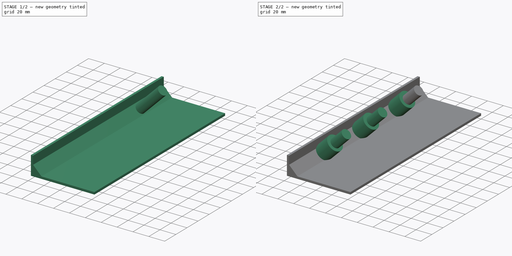
[diagram: build sequence overview — one tinted view per stage of 2, left to right]
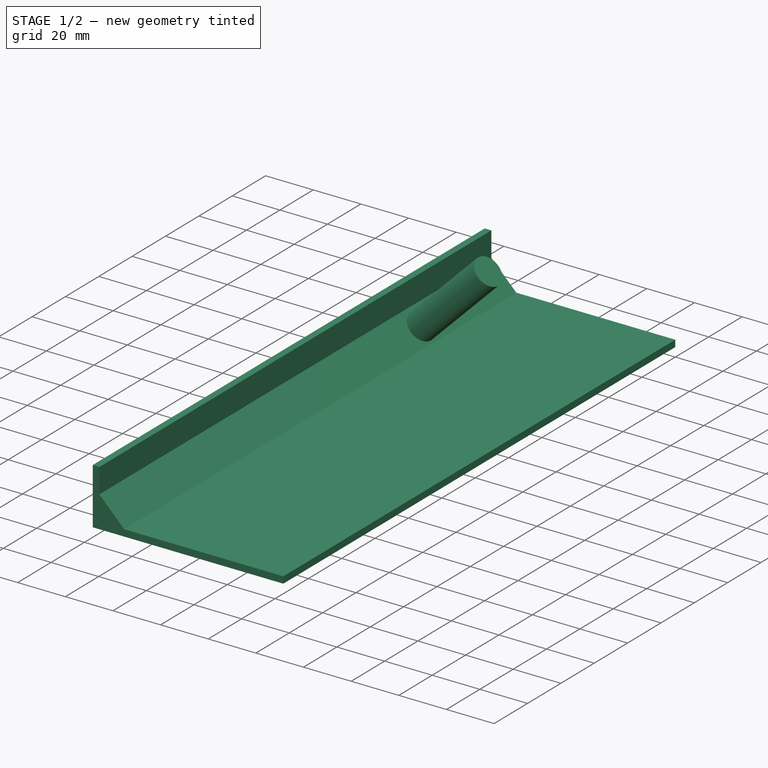
[diagram: stage 1 of 2 — iso view after this stage's code; geometry added in this stage tinted green]
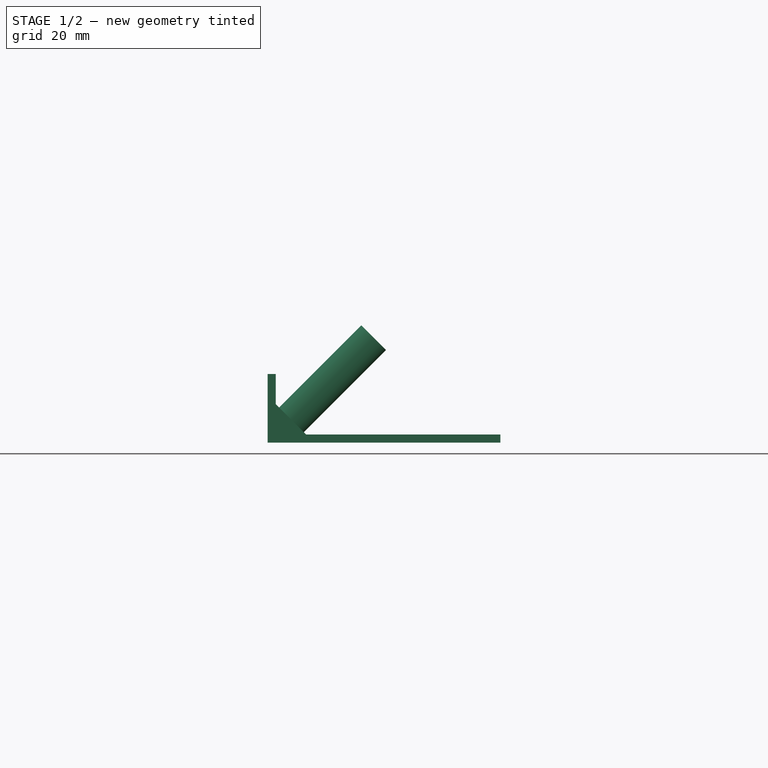
[diagram: stage 1 of 2 — front view after this stage's code; geometry added in this stage tinted green]
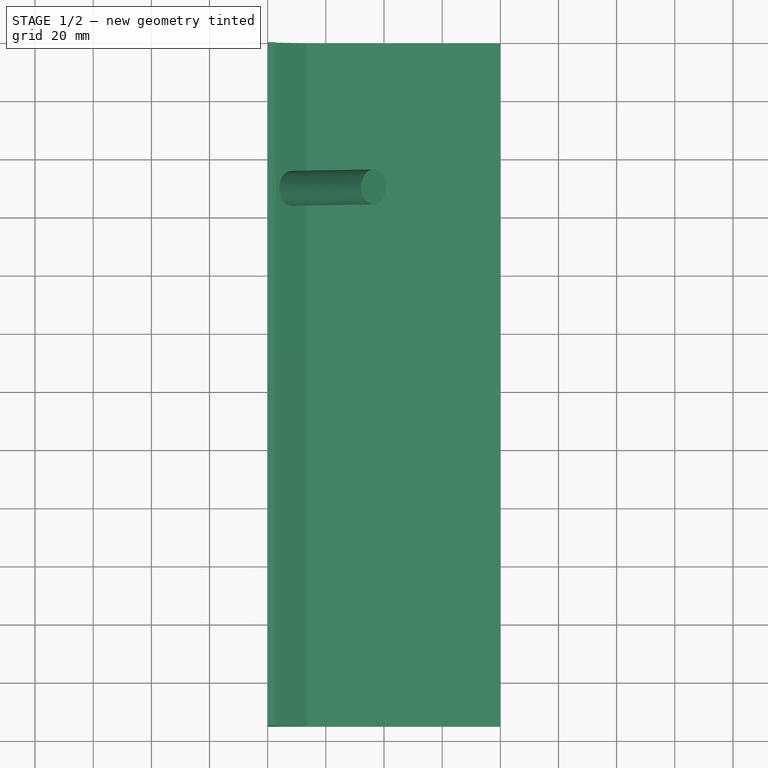
[diagram: stage 1 of 2 — top view after this stage's code; geometry added in this stage tinted green]
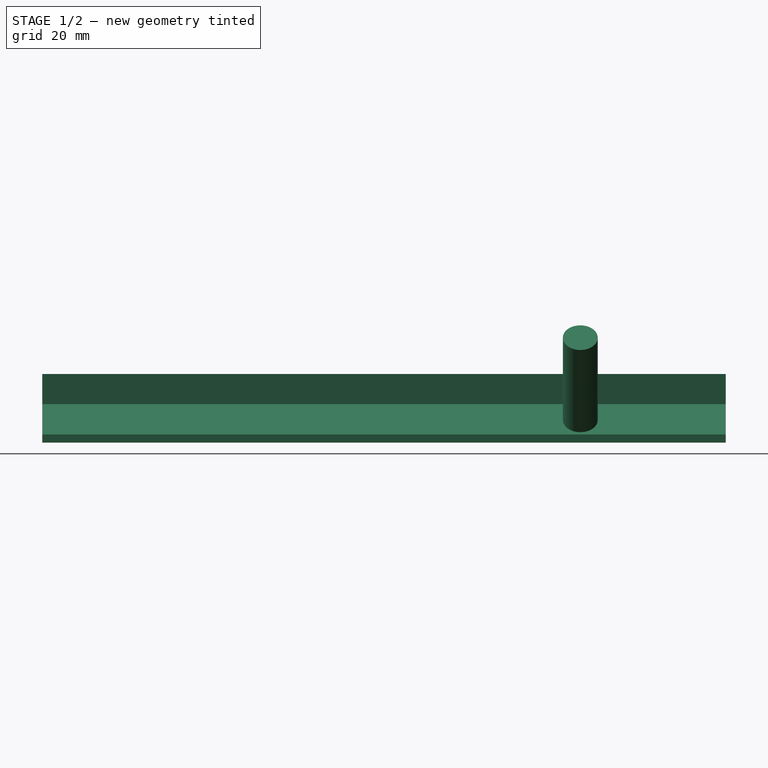
[diagram: stage 1 of 2 — right view after this stage's code; geometry added in this stage tinted green]
FCSTD DOCUMENT  (FreeCAD 0.19R24267 +99 (Git))
Label: Kitchen_aid_attachments
License: Creative Commons Attribution
LicenseURL: http://creativecommons.org/licenses/by/4.0/
objects: Sketcher::SketchObject×3, PartDesign::Pad×3, PartDesign::Plane×1, PartDesign::LinearPattern×1, PartDesign::Body×1
note: 12 computed .brp shape members not serialized (recipe doc carries the construction recipe); baked Part::Feature solids carry a one-line shape summary decoded from their .brp

FEATURE [Sketcher::SketchObject] Sketch
  FullyConstrained = false
  MapMode = 5
  Placement = pos=(0,0,0) rot=(1,0,0;1.5708rad)
  Support = -> [XZ_Plane]
  sketch-geometry (7):
    g0: LineSegment StartX=0 StartY=23.6252 StartZ=0 EndX=2.8 EndY=23.6252 EndZ=0
    g1: LineSegment StartX=2.8 StartY=23.6252 StartZ=0 EndX=2.8 EndY=13.2508 EndZ=0
    g2: LineSegment StartX=2.8 StartY=13.2508 StartZ=0 EndX=13.2508 EndY=2.8 EndZ=0
    g3: LineSegment StartX=13.2508 StartY=2.8 StartZ=0 EndX=80 EndY=2.8 EndZ=0
    g4: LineSegment StartX=80 StartY=2.8 StartZ=0 EndX=80 EndY=0 EndZ=0
    g5: LineSegment StartX=80 StartY=0 StartZ=0 EndX=0 EndY=0 EndZ=0
    g6: LineSegment StartX=0 StartY=0 StartZ=0 EndX=0 EndY=23.6252 EndZ=0
  constraints (18):
    c: PointOnObject(g0,g-2)
    c: Horizontal(g0)
    c: Coincident(g0,g1)
    c: Vertical(g1)
    c: Coincident(g1,g2)
    c: Coincident(g2,g3)
    c: Horizontal(g3)
    c: Coincident(g3,g4)
    c: Vertical(g4)
    c: Coincident(g4,g5)
    c: Coincident(g5,g-1)
    c: Horizontal(g5)
    c: Coincident(g5,g6)
    c: Coincident(g6,g0)
    c: Angle(g2,g1) = 2.35619
    c: DistanceY(g4,g3) = 2.8
    c: DistanceX(g0,g0) = 2.8
    c: DistanceX(g5,g4) = 80
FEATURE [PartDesign::Pad] Pad
  Direction = (0,-1,2e-16)
  Length = 235
  Length2 = 10
  Placement = pos=(0,0,0) rot=(1,0,0;1.5708rad)
  Profile = -> Sketch
  Refine = true
  Type = 0
FEATURE [PartDesign::Plane] DatumPlane
  AttachmentOffset = pos=(0,0,16) rot=(-1,0,0;0.785398rad)
  Length = 295.394
  MapMode = 5
  Placement = pos=(16,-3.6e-15,3.6e-15) rot=(0.357407,0.357407,0.862856;1.71777rad)
  ResizeMode = 0
  Support = -> [YZ_Plane]
  Width = 155.85
FEATURE [Sketcher::SketchObject] Sketch001
  FullyConstrained = false
  MapMode = 5
  Placement = pos=(16,-3.6e-15,3.6e-15) rot=(0.357407,0.357407,0.862856;1.71777rad)
  Support = -> [DatumPlane]
  sketch-geometry (1):
    g0: Circle CenterX=-50 CenterY=11.064 CenterZ=0 NormalX=0 NormalY=0 NormalZ=1 AngleXU=0 Radius=6
  constraints (2):
    c: Diameter(g0) = 12
    c: DistanceX(g0,g-1) = 50
FEATURE [PartDesign::Pad] Pad001
  BaseFeature = -> Pad
  Direction = (0.707107,0,0.707107)
  Length = 40
  Length2 = 10
  Placement = pos=(0,0,0) rot=(1,0,0;1.5708rad)
  Profile = -> Sketch001
  Refine = true
  Type = 0
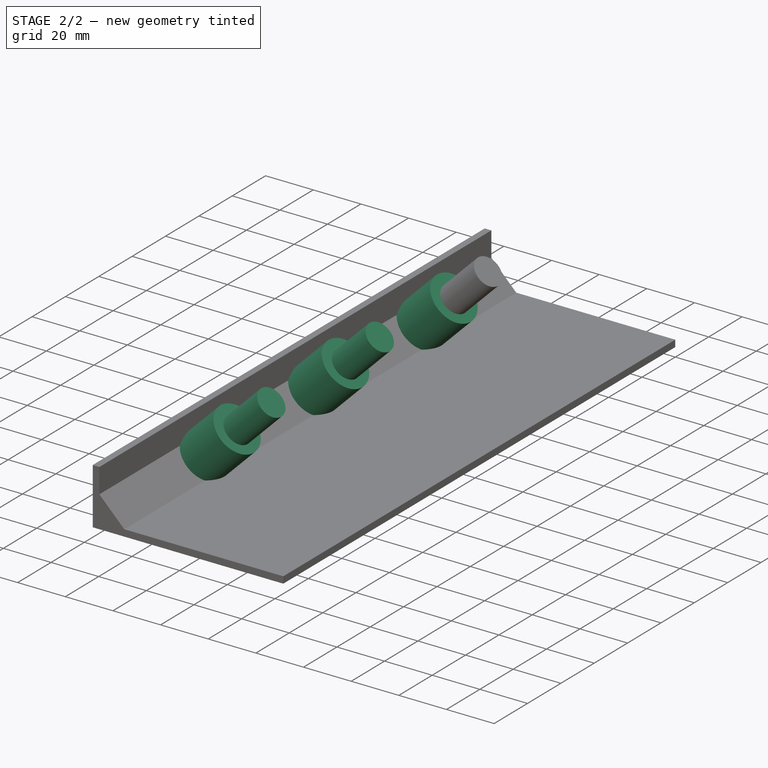
[diagram: stage 2 of 2 — iso view after this stage's code; geometry added in this stage tinted green]
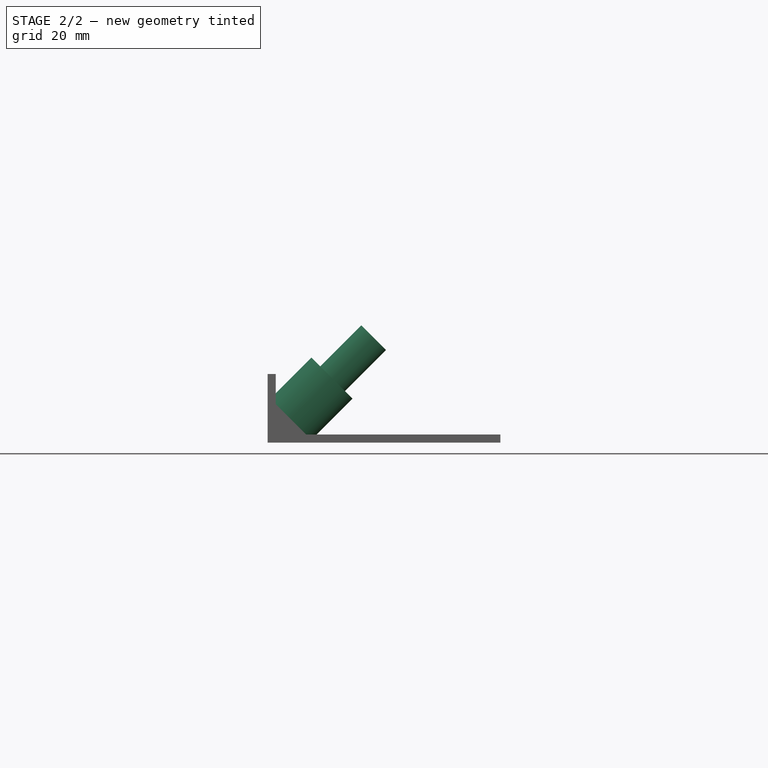
[diagram: stage 2 of 2 — front view after this stage's code; geometry added in this stage tinted green]
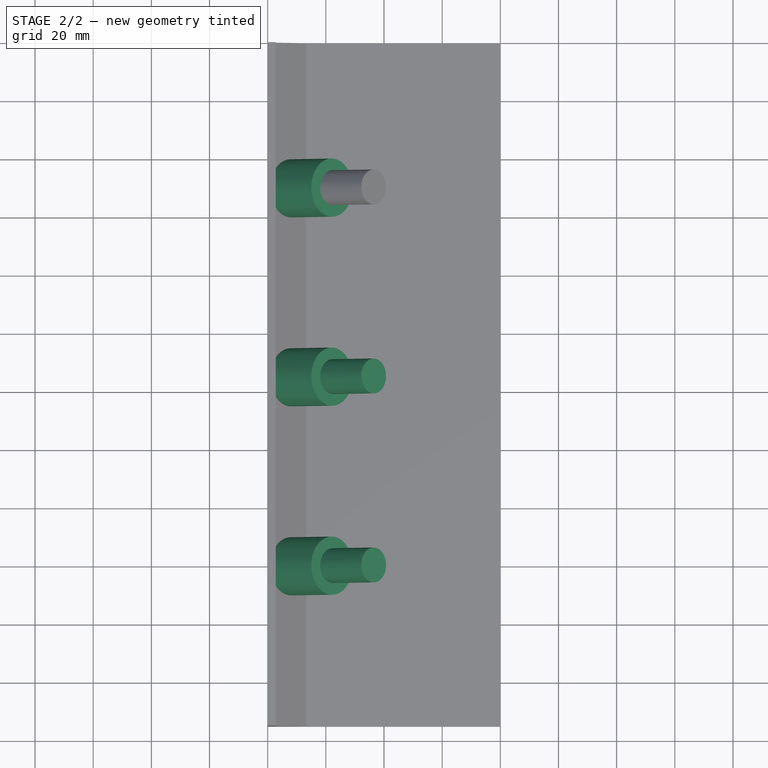
[diagram: stage 2 of 2 — top view after this stage's code; geometry added in this stage tinted green]
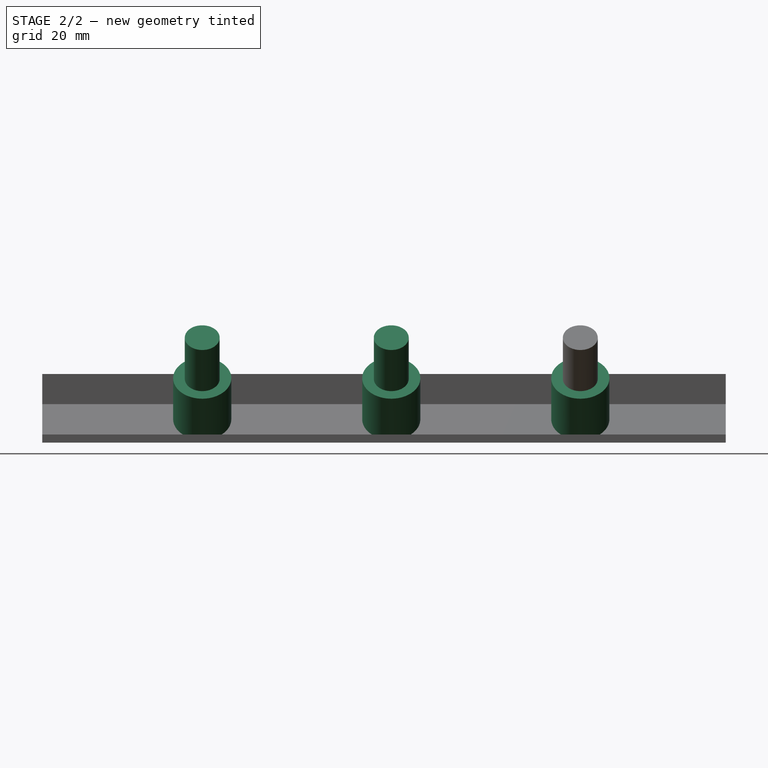
[diagram: stage 2 of 2 — right view after this stage's code; geometry added in this stage tinted green]
FEATURE [Sketcher::SketchObject] Sketch002
  FullyConstrained = false
  MapMode = 5
  Placement = pos=(16,-3.6e-15,3.6e-15) rot=(0.357407,0.357407,0.862856;1.71777rad)
  Support = -> [DatumPlane]
  sketch-geometry (1):
    g0: Circle CenterX=-50 CenterY=11.3826 CenterZ=0 NormalX=0 NormalY=0 NormalZ=1 AngleXU=0 Radius=10
  constraints (2):
    c: Diameter(g0) = 20
    c: DistanceX(g0,g-1) = 50
FEATURE [PartDesign::Pad] Pad002
  BaseFeature = -> Pad001
  Direction = (0.707107,0,0.707107)
  Length = 20
  Length2 = 10
  Placement = pos=(0,0,0) rot=(1,0,0;1.5708rad)
  Profile = -> Sketch002
  Refine = true
  Type = 0
FEATURE [PartDesign::LinearPattern] LinearPattern
  BaseFeature = -> Pad002
  Direction = -> Sketch001 [H_Axis]
  Length = 130
  Occurrences = 3
  Originals = -> [Pad001,Pad002]
  Placement = pos=(0,0,0) rot=(1,0,0;1.5708rad)
  Refine = true
  Reversed = true
FEATURE [PartDesign::Body] Body
  Group = -> [Sketch,Pad,DatumPlane,Sketch001,Pad001,Sketch002,Pad002,LinearPattern]
  Origin = -> Origin
  Tip = -> LinearPattern
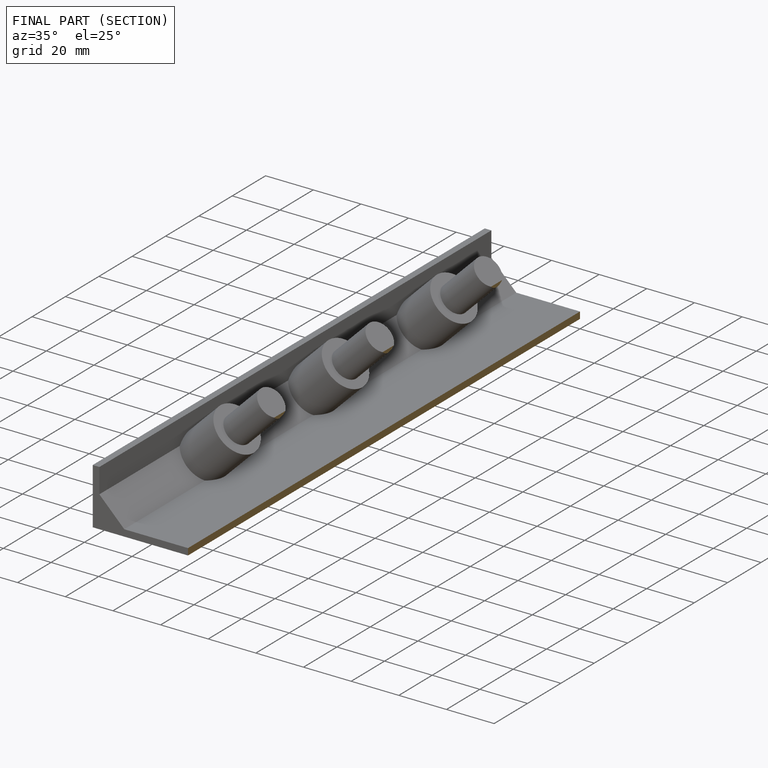
[diagram: finished part — half-section view (interior)]
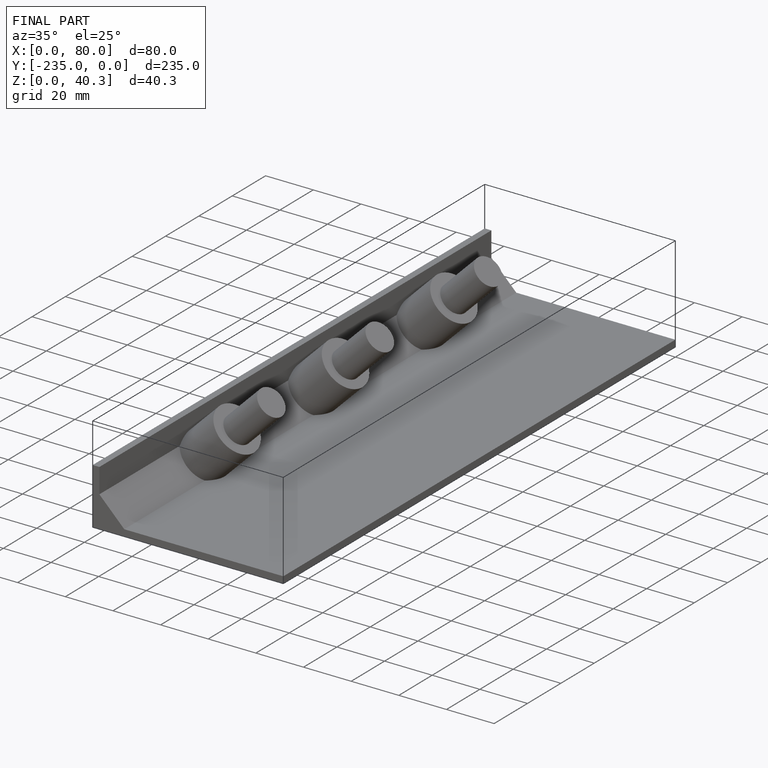
[diagram: finished part — iso view with bounding-box wireframe]
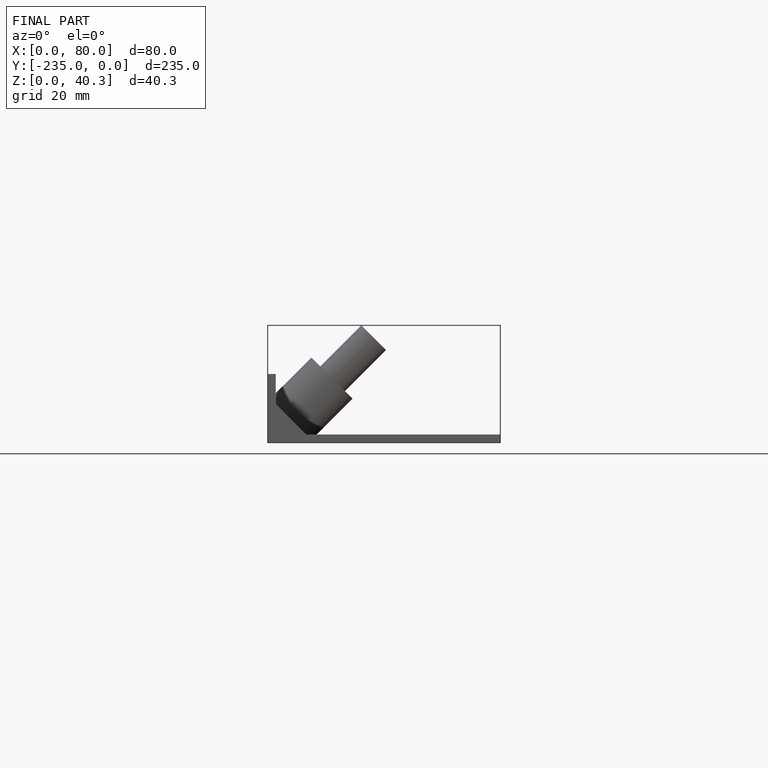
[diagram: finished part — front view with bounding-box wireframe]
